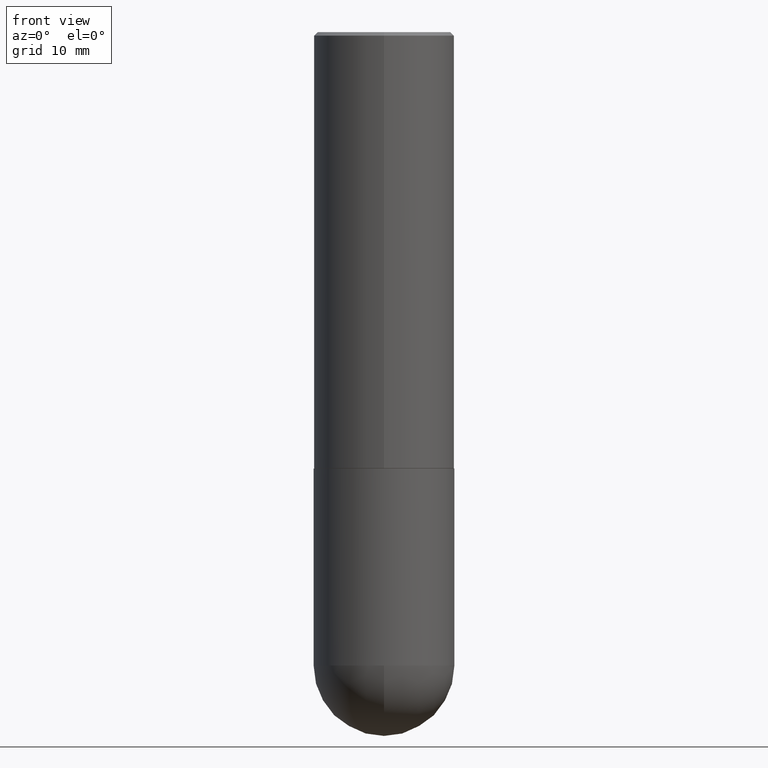
[diagram: clean part render]
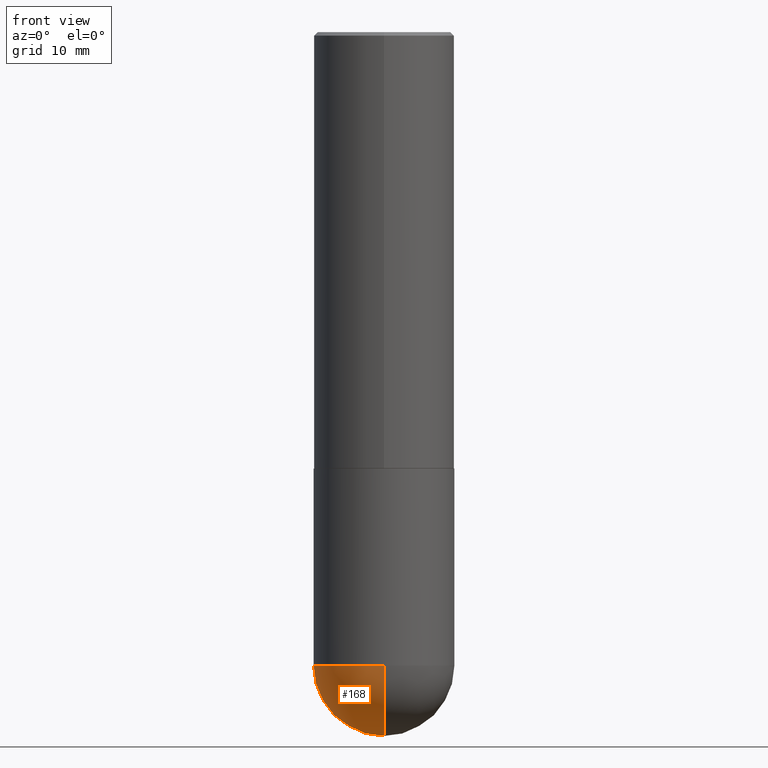
[diagram: same view with one face highlighted and labeled with its STEP entity id]
A machine part, front view. The second image highlights one B-rep face of the part: STEP entity #168.
In plain terms, the highlighted spherical surface has radius 10 mm.
Its self-contained STEP definition (entity closure, byte-faithful):
#9 = ORIENTED_EDGE ( 'NONE', *, *, #230, .F. ) ;
#12 = EDGE_CURVE ( 'NONE', #219, #132, #209, .T. ) ;
#14 = AXIS2_PLACEMENT_3D ( 'NONE', #231, #171, #197 ) ;
#24 = CARTESIAN_POINT ( 'NONE',  ( 8.333909843041907822E-29, -1.284554819606296579E-14, -3.543299999999999894 ) ) ;
#32 = CARTESIAN_POINT ( 'NONE',  ( 8.333909843041907822E-29, -1.284554819606296579E-14, -3.543299999999999894 ) ) ;
#37 = AXIS2_PLACEMENT_3D ( 'NONE', #24, #212, #283 ) ;
#53 = CARTESIAN_POINT ( 'NONE',  ( -0.3937000000000001054, -7.649454563265064966E-15, -3.543299999999999450 ) ) ;
#56 = CARTESIAN_POINT ( 'NONE',  ( 2.749192406205169202E-15, 0.3936999999999876709, -3.543300000000000782 ) ) ;
#64 = ORIENTED_EDGE ( 'NONE', *, *, #274, .F. ) ;
#71 = DIRECTION ( 'NONE',  ( 1.000000000000000000, -6.982962677686266711E-15, 0.000000000000000000 ) ) ;
#92 = DIRECTION ( 'NONE',  ( 6.982962677686265133E-15, 1.000000000000000000, 0.000000000000000000 ) ) ;
#105 = ORIENTED_EDGE ( 'NONE', *, *, #12, .F. ) ;
#123 = DIRECTION ( 'NONE',  ( 1.000000000000000000, -6.982962677686265922E-15, 4.883557194083112340E-29 ) ) ;
#132 = VERTEX_POINT ( 'NONE', #254 ) ;
#147 = CIRCLE ( 'NONE', #288, 0.3937000000000003830 ) ;
#149 = CIRCLE ( 'NONE', #14, 0.3937000000000001054 ) ;
#153 = AXIS2_PLACEMENT_3D ( 'NONE', #388, #357, #71 ) ;
#154 = DIRECTION ( 'NONE',  ( -1.000000000000000000, 6.982962677686265922E-15, -4.883557194083112340E-29 ) ) ;
#168 = ADVANCED_FACE ( 'NONE', ( #371 ), #314, .T. ) ;
#169 = CIRCLE ( 'NONE', #37, 0.3937000000000003830 ) ;
#171 = DIRECTION ( 'NONE',  ( -2.445468806185136597E-29, 3.491481338843145583E-15, 1.000000000000000000 ) ) ;
#193 = EDGE_CURVE ( 'NONE', #213, #132, #169, .T. ) ;
#197 = DIRECTION ( 'NONE',  ( 1.000000000000000000, -6.982962677686266711E-15, 0.000000000000000000 ) ) ;
#209 = CIRCLE ( 'NONE', #153, 0.3937000000000001054 ) ;
#212 = DIRECTION ( 'NONE',  ( -1.000000000000000000, 7.105427357601001070E-15, -4.926315508542082329E-29 ) ) ;
#213 = VERTEX_POINT ( 'NONE', #348 ) ;
#218 = CARTESIAN_POINT ( 'NONE',  ( 8.333909843041907822E-29, -1.284554819606296579E-14, -3.543299999999999894 ) ) ;
#219 = VERTEX_POINT ( 'NONE', #53 ) ;
#221 = VERTEX_POINT ( 'NONE', #56 ) ;
#222 = DIRECTION ( 'NONE',  ( 6.982962677686265922E-15, 1.000000000000000000, -4.163344669033671690E-15 ) ) ;
#230 = EDGE_CURVE ( 'NONE', #213, #221, #147, .T. ) ;
#231 = CARTESIAN_POINT ( 'NONE',  ( 8.665029620955792948E-29, -1.237136582792291707E-14, -3.543299999999999450 ) ) ;
#233 = AXIS2_PLACEMENT_3D ( 'NONE', #32, #154, #222 ) ;
#254 = CARTESIAN_POINT ( 'NONE',  ( -2.797406750687430773E-15, -0.3937000000000128175, -3.543299999999997674 ) ) ;
#269 = EDGE_LOOP ( 'NONE', ( #9, #313, #105, #64 ) ) ;
#274 = EDGE_CURVE ( 'NONE', #221, #219, #149, .T. ) ;
#283 = DIRECTION ( 'NONE',  ( -7.105427357600999492E-15, -1.000000000000000000, 0.000000000000000000 ) ) ;
#288 = AXIS2_PLACEMENT_3D ( 'NONE', #218, #123, #92 ) ;
#313 = ORIENTED_EDGE ( 'NONE', *, *, #193, .T. ) ;
#314 = SPHERICAL_SURFACE ( 'NONE', #233, 0.3937000000000003830 ) ;
#348 = CARTESIAN_POINT ( 'NONE',  ( 9.313524860439493426E-29, -1.419603722692429674E-14, -3.937000000000000277 ) ) ;
#357 = DIRECTION ( 'NONE',  ( -2.445468806185136597E-29, 3.491481338843145583E-15, 1.000000000000000000 ) ) ;
#371 = FACE_OUTER_BOUND ( 'NONE', #269, .T. ) ;
#388 = CARTESIAN_POINT ( 'NONE',  ( 8.665029620955792948E-29, -1.237136582792291707E-14, -3.543299999999999450 ) ) ;